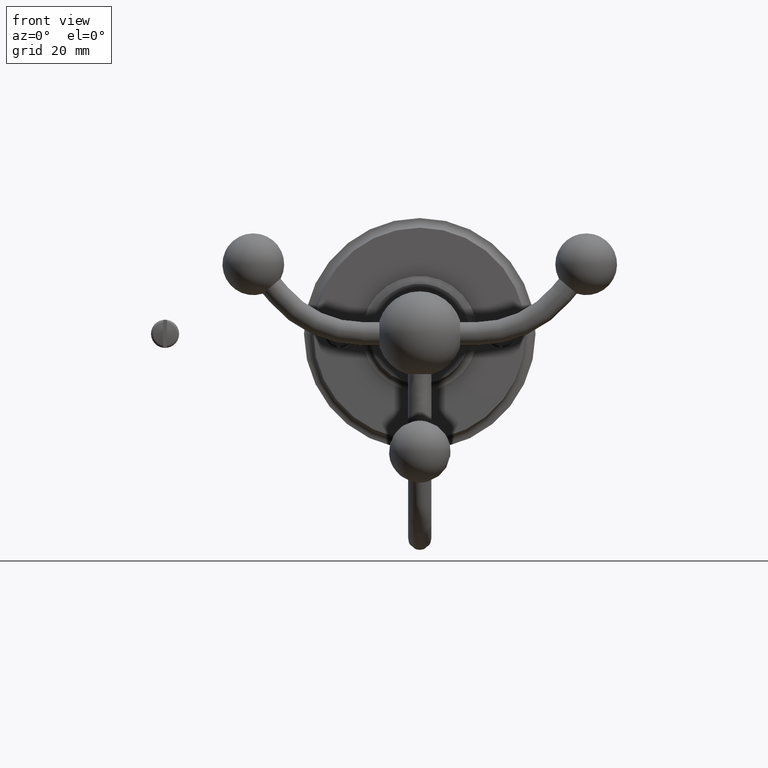
[diagram: clean part render]
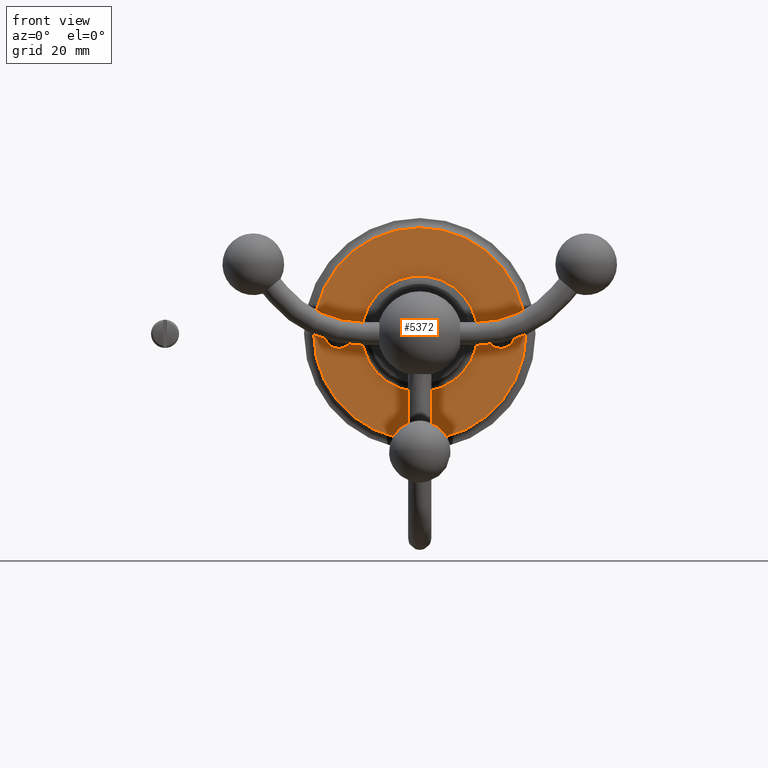
[diagram: same view with one face highlighted and labeled with its STEP entity id]
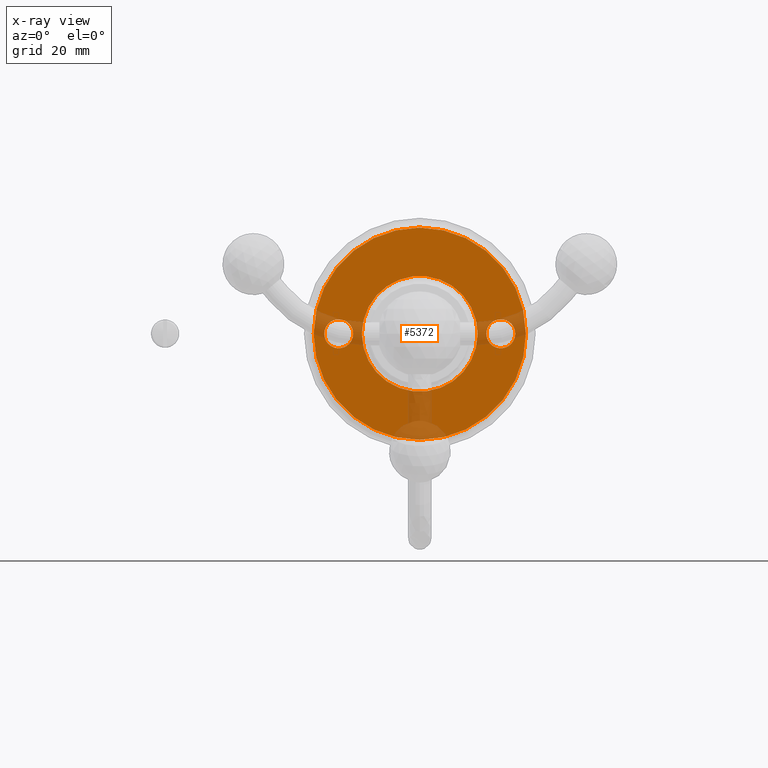
[diagram: x-ray of the same camera — body ghosted, the highlighted face saturated]
A machine part, front view. The second image highlights one B-rep face of the part: STEP entity #5372.
The next image is the same camera in x-ray: the body ghosted, the highlighted face saturated — about 11% of this face is hidden behind the body in this view.
In plain terms, the highlighted planar face has unit normal (0, -1, 0).
Its self-contained STEP definition (entity closure, byte-faithful):
#4659=CARTESIAN_POINT('',(-2.1E1,3.E0,0.E0));
#4660=DIRECTION('',(0.E0,1.E0,0.E0));
#4661=DIRECTION('',(-1.E0,0.E0,0.E0));
#4662=AXIS2_PLACEMENT_3D('',#4659,#4660,#4661);
#4664=CARTESIAN_POINT('',(-2.1E1,3.E0,0.E0));
#4665=DIRECTION('',(0.E0,1.E0,0.E0));
#4666=DIRECTION('',(1.E0,0.E0,0.E0));
#4667=AXIS2_PLACEMENT_3D('',#4664,#4665,#4666);
#4669=CARTESIAN_POINT('',(2.1E1,3.E0,0.E0));
#4670=DIRECTION('',(0.E0,-1.E0,0.E0));
#4671=DIRECTION('',(1.E0,0.E0,0.E0));
#4672=AXIS2_PLACEMENT_3D('',#4669,#4670,#4671);
#4674=CARTESIAN_POINT('',(2.1E1,3.E0,0.E0));
#4675=DIRECTION('',(0.E0,-1.E0,0.E0));
#4676=DIRECTION('',(-1.E0,0.E0,0.E0));
#4677=AXIS2_PLACEMENT_3D('',#4674,#4675,#4676);
#4679=CARTESIAN_POINT('',(0.E0,3.E0,0.E0));
#4680=DIRECTION('',(0.E0,1.E0,0.E0));
#4681=DIRECTION('',(1.E0,0.E0,0.E0));
#4682=AXIS2_PLACEMENT_3D('',#4679,#4680,#4681);
#4684=CARTESIAN_POINT('',(0.E0,3.E0,0.E0));
#4685=DIRECTION('',(0.E0,1.E0,0.E0));
#4686=DIRECTION('',(-1.E0,0.E0,0.E0));
#4687=AXIS2_PLACEMENT_3D('',#4684,#4685,#4686);
#4689=CARTESIAN_POINT('',(0.E0,3.E0,0.E0));
#4690=DIRECTION('',(0.E0,1.E0,0.E0));
#4691=DIRECTION('',(-1.E0,0.E0,0.E0));
#4692=AXIS2_PLACEMENT_3D('',#4689,#4690,#4691);
#4694=CARTESIAN_POINT('',(0.E0,3.E0,0.E0));
#4695=DIRECTION('',(0.E0,1.E0,0.E0));
#4696=DIRECTION('',(1.E0,0.E0,0.E0));
#4697=AXIS2_PLACEMENT_3D('',#4694,#4695,#4696);
#5146=CARTESIAN_POINT('',(2.75E1,3.E0,0.E0));
#5147=CARTESIAN_POINT('',(-2.75E1,3.E0,0.E0));
#5148=VERTEX_POINT('',#5146);
#5149=VERTEX_POINT('',#5147);
#5154=CARTESIAN_POINT('',(-1.5E1,3.E0,0.E0));
#5155=CARTESIAN_POINT('',(1.5E1,3.E0,0.E0));
#5156=VERTEX_POINT('',#5154);
#5157=VERTEX_POINT('',#5155);
#5166=CARTESIAN_POINT('',(-2.475E1,3.E0,0.E0));
#5167=CARTESIAN_POINT('',(-1.725E1,3.E0,0.E0));
#5168=VERTEX_POINT('',#5166);
#5169=VERTEX_POINT('',#5167);
#5174=CARTESIAN_POINT('',(2.475E1,3.E0,0.E0));
#5175=CARTESIAN_POINT('',(1.725E1,3.E0,0.E0));
#5176=VERTEX_POINT('',#5174);
#5177=VERTEX_POINT('',#5175);
#5344=CARTESIAN_POINT('',(0.E0,3.E0,0.E0));
#5345=DIRECTION('',(0.E0,1.E0,0.E0));
#5346=DIRECTION('',(1.E0,0.E0,0.E0));
#5347=AXIS2_PLACEMENT_3D('',#5344,#5345,#5346);
#5348=PLANE('',#5347);
#5349=ORIENTED_EDGE('',*,*,#5334,.F.);
#5351=ORIENTED_EDGE('',*,*,#5350,.F.);
#5352=EDGE_LOOP('',(#5349,#5351));
#5353=FACE_OUTER_BOUND('',#5352,.F.);
#5355=ORIENTED_EDGE('',*,*,#5354,.F.);
#5357=ORIENTED_EDGE('',*,*,#5356,.F.);
#5358=EDGE_LOOP('',(#5355,#5357));
#5359=FACE_BOUND('',#5358,.F.);
#5361=ORIENTED_EDGE('',*,*,#5360,.T.);
#5363=ORIENTED_EDGE('',*,*,#5362,.T.);
#5364=EDGE_LOOP('',(#5361,#5363));
#5365=FACE_BOUND('',#5364,.F.);
#5367=ORIENTED_EDGE('',*,*,#5366,.T.);
#5369=ORIENTED_EDGE('',*,*,#5368,.T.);
#5370=EDGE_LOOP('',(#5367,#5369));
#5371=FACE_BOUND('',#5370,.F.);
#5372=ADVANCED_FACE('',(#5353,#5359,#5365,#5371),#5348,.T.);
#4663=CIRCLE('',#4662,3.75E0);
#4668=CIRCLE('',#4667,3.75E0);
#4673=CIRCLE('',#4672,3.75E0);
#4678=CIRCLE('',#4677,3.75E0);
#4683=CIRCLE('',#4682,2.75E1);
#4688=CIRCLE('',#4687,2.75E1);
#4693=CIRCLE('',#4692,1.5E1);
#4698=CIRCLE('',#4697,1.5E1);
#5334=EDGE_CURVE('',#5148,#5149,#4683,.T.);
#5350=EDGE_CURVE('',#5149,#5148,#4688,.T.);
#5354=EDGE_CURVE('',#5176,#5177,#4673,.T.);
#5356=EDGE_CURVE('',#5177,#5176,#4678,.T.);
#5360=EDGE_CURVE('',#5168,#5169,#4663,.T.);
#5362=EDGE_CURVE('',#5169,#5168,#4668,.T.);
#5366=EDGE_CURVE('',#5156,#5157,#4693,.T.);
#5368=EDGE_CURVE('',#5157,#5156,#4698,.T.);